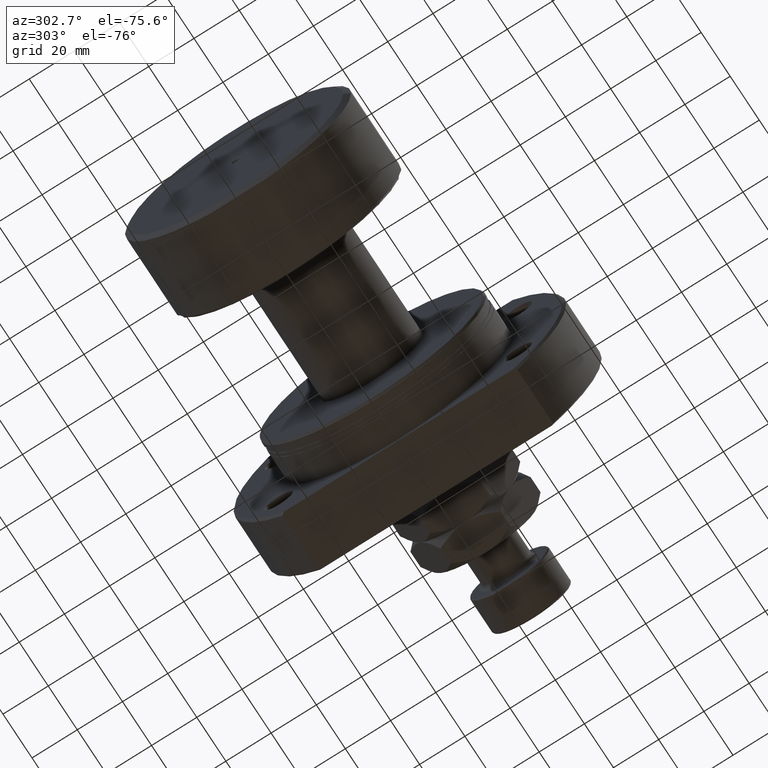
[diagram: clean part render]
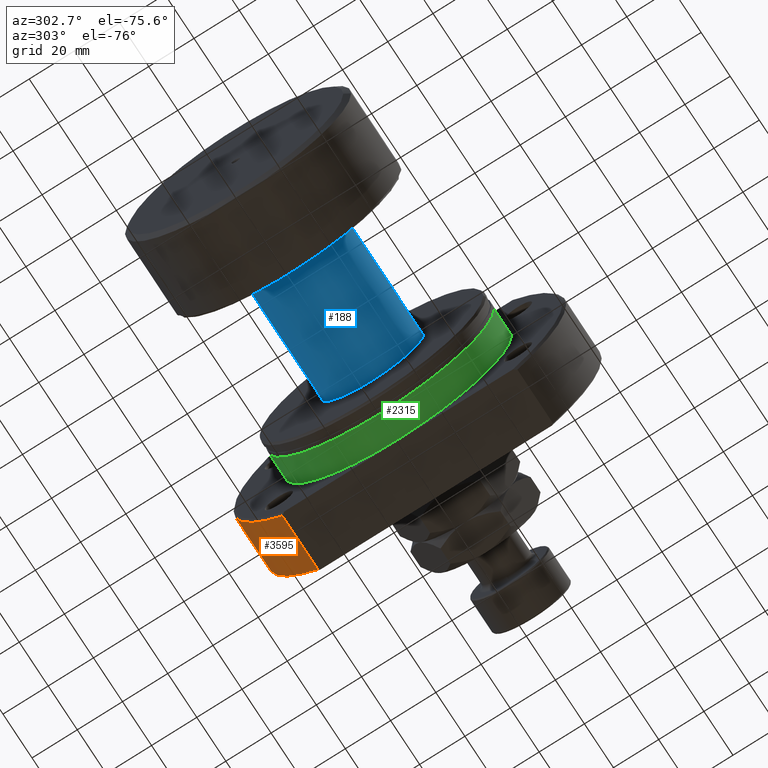
[diagram: same view with three faces highlighted in distinct colors, each labeled with its STEP entity id]
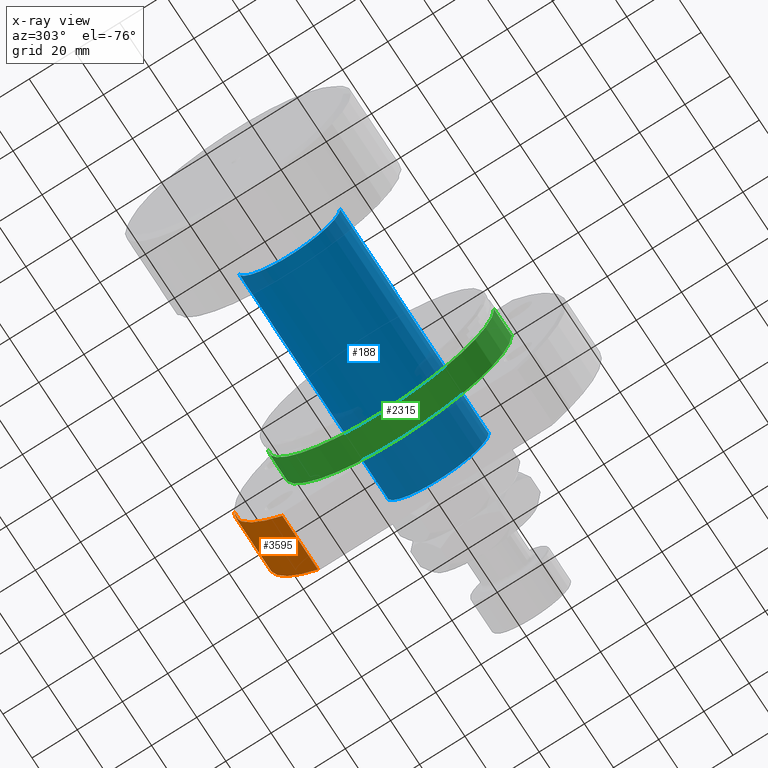
[diagram: x-ray of the same camera — body ghosted, the three highlighted faces saturated]
A machine part, auxiliary view with three faces highlighted in distinct colors.
The next image is the same camera in x-ray (body ghosted, the three faces saturated) — at least one of them is partly hidden behind the body in this view.
Their STEP definitions:

[orange] entity #3595 — the highlighted cylindrical surface (partial cylindrical patch) has radius 73.5 mm, axis along (1, 0, 0).
#21 = CARTESIAN_POINT ( 'NONE',  ( 19.49999999999999645, 1.073285958803297879E-15, 0.000000000000000000 ) ) ;
#180 = CARTESIAN_POINT ( 'NONE',  ( 44.49999999999999289, 73.49999999999991473, 0.000000000000000000 ) ) ;
#235 = CARTESIAN_POINT ( 'NONE',  ( -6.175615574477433256E-13, 51.94468211472779018, -52.00000000000000711 ) ) ;
#315 = DIRECTION ( 'NONE',  ( -9.440671978105083104E-17, 1.000000000000000000, 0.000000000000000000 ) ) ;
#360 = AXIS2_PLACEMENT_3D ( 'NONE', #2550, #1721, #2122 ) ;
#417 = CARTESIAN_POINT ( 'NONE',  ( 44.00000000000007816, 73.49999999999991473, 0.000000000000000000 ) ) ;
#503 = VERTEX_POINT ( 'NONE', #1491 ) ;
#528 = AXIS2_PLACEMENT_3D ( 'NONE', #21, #4663, #2021 ) ;
#600 = ORIENTED_EDGE ( 'NONE', *, *, #3935, .T. ) ;
#1108 = DIRECTION ( 'NONE',  ( 1.000000000000000000, 5.504030557965630938E-17, -0.000000000000000000 ) ) ;
#1203 = VERTEX_POINT ( 'NONE', #2960 ) ;
#1221 = EDGE_CURVE ( 'NONE', #4900, #503, #3413, .T. ) ;
#1310 = CARTESIAN_POINT ( 'NONE',  ( 19.49999999999999289, 51.94468211472722885, -52.00000000000000711 ) ) ;
#1491 = CARTESIAN_POINT ( 'NONE',  ( 44.00000000000007816, 51.94468211472651831, -52.00000000000000711 ) ) ;
#1497 = EDGE_CURVE ( 'NONE', #1203, #1760, #4741, .T. ) ;
#1721 = DIRECTION ( 'NONE',  ( 1.000000000000000000, 5.504030557965630938E-17, -0.000000000000000000 ) ) ;
#1760 = VERTEX_POINT ( 'NONE', #417 ) ;
#2021 = DIRECTION ( 'NONE',  ( -4.720335989052541552E-17, 1.000000000000000000, 0.000000000000000000 ) ) ;
#2122 = DIRECTION ( 'NONE',  ( -9.440671978105083104E-17, 1.000000000000000000, 0.000000000000000000 ) ) ;
#2305 = AXIS2_PLACEMENT_3D ( 'NONE', #3784, #1108, #315 ) ;
#2356 = ORIENTED_EDGE ( 'NONE', *, *, #1221, .F. ) ;
#2376 = EDGE_LOOP ( 'NONE', ( #600, #2679, #4401, #2356 ) ) ;
#2450 = CYLINDRICAL_SURFACE ( 'NONE', #360, 73.49999999999991473 ) ;
#2550 = CARTESIAN_POINT ( 'NONE',  ( 44.50000000000000000, 2.449293598294705724E-15, 0.000000000000000000 ) ) ;
#2679 = ORIENTED_EDGE ( 'NONE', *, *, #1497, .T. ) ;
#2708 = CIRCLE ( 'NONE', #528, 73.49999999999991473 ) ;
#2960 = CARTESIAN_POINT ( 'NONE',  ( 19.49999999999999289, 73.49999999999991473, 0.000000000000000000 ) ) ;
#2995 = EDGE_CURVE ( 'NONE', #503, #1760, #4481, .T. ) ;
#3287 = FACE_OUTER_BOUND ( 'NONE', #2376, .T. ) ;
#3413 = LINE ( 'NONE', #235, #4786 ) ;
#3595 = ADVANCED_FACE ( 'NONE', ( #3287 ), #2450, .T. ) ;
#3784 = CARTESIAN_POINT ( 'NONE',  ( 44.00000000000008527, 2.421773445504882888E-15, 0.000000000000000000 ) ) ;
#3935 = EDGE_CURVE ( 'NONE', #4900, #1203, #2708, .T. ) ;
#4233 = VECTOR ( 'NONE', #4785, 1000.000000000000000 ) ;
#4401 = ORIENTED_EDGE ( 'NONE', *, *, #2995, .F. ) ;
#4481 = CIRCLE ( 'NONE', #2305, 73.49999999999991473 ) ;
#4663 = DIRECTION ( 'NONE',  ( 1.000000000000000000, 5.504030557965630938E-17, -0.000000000000000000 ) ) ;
#4741 = LINE ( 'NONE', #180, #4233 ) ;
#4785 = DIRECTION ( 'NONE',  ( 1.000000000000000000, 5.504030557965630938E-17, -0.000000000000000000 ) ) ;
#4786 = VECTOR ( 'NONE', #4933, 1000.000000000000000 ) ;
#4900 = VERTEX_POINT ( 'NONE', #1310 ) ;
#4933 = DIRECTION ( 'NONE',  ( 1.000000000000000000, -2.886466111666351885E-14, -0.000000000000000000 ) ) ;

[blue] entity #188 — the highlighted cylindrical surface (partial cylindrical patch) has radius 22.5 mm, axis along (-1, -0, -0).
#22 = ORIENTED_EDGE ( 'NONE', *, *, #427, .T. ) ;
#27 = CARTESIAN_POINT ( 'NONE',  ( 139.0667575123237896, -22.50000000000019185, 0.000000000000000000 ) ) ;
#188 = ADVANCED_FACE ( 'NONE', ( #1277 ), #3591, .T. ) ;
#297 = CARTESIAN_POINT ( 'NONE',  ( -2.406470224655408490E-16, 22.50000000000009592, 2.755455298081556216E-15 ) ) ;
#376 = EDGE_CURVE ( 'NONE', #4976, #2086, #4065, .T. ) ;
#427 = EDGE_CURVE ( 'NONE', #4976, #3447, #3177, .T. ) ;
#747 = CARTESIAN_POINT ( 'NONE',  ( 139.0667575123237896, 22.50000000000018829, 2.755455298081568049E-15 ) ) ;
#773 = CIRCLE ( 'NONE', #935, 22.50000000000000000 ) ;
#930 = VECTOR ( 'NONE', #3863, 1000.000000000000000 ) ;
#935 = AXIS2_PLACEMENT_3D ( 'NONE', #1299, #1342, #4412 ) ;
#1131 = VERTEX_POINT ( 'NONE', #3980 ) ;
#1277 = FACE_OUTER_BOUND ( 'NONE', #2027, .T. ) ;
#1299 = CARTESIAN_POINT ( 'NONE',  ( 36.70000000000000284, 3.925220321993471577E-16, 0.000000000000000000 ) ) ;
#1342 = DIRECTION ( 'NONE',  ( -1.000000000000000000, -1.069542322069065801E-17, -0.000000000000000000 ) ) ;
#1775 = DIRECTION ( 'NONE',  ( 0.000000000000000000, -1.000000000000000000, 0.000000000000000000 ) ) ;
#2024 = CARTESIAN_POINT ( 'NONE',  ( 0.000000000000000000, 0.000000000000000000, 0.000000000000000000 ) ) ;
#2027 = EDGE_LOOP ( 'NONE', ( #3479, #22, #4947, #3551 ) ) ;
#2086 = VERTEX_POINT ( 'NONE', #3506 ) ;
#2100 = DIRECTION ( 'NONE',  ( 1.069542322069065955E-17, -1.000000000000000000, 0.000000000000000000 ) ) ;
#2137 = EDGE_CURVE ( 'NONE', #3447, #1131, #3399, .T. ) ;
#2748 = EDGE_CURVE ( 'NONE', #2086, #1131, #773, .T. ) ;
#2808 = DIRECTION ( 'NONE',  ( -1.000000000000000000, -1.069542322069065801E-17, -0.000000000000000000 ) ) ;
#3177 = CIRCLE ( 'NONE', #4387, 22.50000000000019185 ) ;
#3381 = DIRECTION ( 'NONE',  ( -1.000000000000000000, -1.069542322069065801E-17, -0.000000000000000000 ) ) ;
#3399 = LINE ( 'NONE', #4601, #930 ) ;
#3447 = VERTEX_POINT ( 'NONE', #27 ) ;
#3479 = ORIENTED_EDGE ( 'NONE', *, *, #376, .F. ) ;
#3506 = CARTESIAN_POINT ( 'NONE',  ( 36.70000000000000284, 22.50000000000000000, 2.755455298081550694E-15 ) ) ;
#3551 = ORIENTED_EDGE ( 'NONE', *, *, #2748, .F. ) ;
#3591 = CYLINDRICAL_SURFACE ( 'NONE', #3986, 22.50000000000009592 ) ;
#3663 = VECTOR ( 'NONE', #4906, 1000.000000000000000 ) ;
#3733 = CARTESIAN_POINT ( 'NONE',  ( 139.0667575123237896, 1.487377827523464785E-15, 0.000000000000000000 ) ) ;
#3863 = DIRECTION ( 'NONE',  ( -1.000000000000000000, -1.069542322069065801E-17, -0.000000000000000000 ) ) ;
#3980 = CARTESIAN_POINT ( 'NONE',  ( 36.70000000000000284, -22.50000000000000000, 0.000000000000000000 ) ) ;
#3986 = AXIS2_PLACEMENT_3D ( 'NONE', #2024, #2808, #2100 ) ;
#4065 = LINE ( 'NONE', #297, #3663 ) ;
#4387 = AXIS2_PLACEMENT_3D ( 'NONE', #3733, #3381, #1775 ) ;
#4412 = DIRECTION ( 'NONE',  ( 0.000000000000000000, -1.000000000000000000, 0.000000000000000000 ) ) ;
#4601 = CARTESIAN_POINT ( 'NONE',  ( 2.406470224655408490E-16, -22.50000000000009592, 0.000000000000000000 ) ) ;
#4906 = DIRECTION ( 'NONE',  ( -1.000000000000000000, -1.069542322069065801E-17, -0.000000000000000000 ) ) ;
#4947 = ORIENTED_EDGE ( 'NONE', *, *, #2137, .T. ) ;
#4976 = VERTEX_POINT ( 'NONE', #747 ) ;

[green] entity #2315 — the highlighted cylindrical surface (partial cylindrical patch) has radius 50 mm, axis along (1, 0, 0).
#131 = DIRECTION ( 'NONE',  ( 1.000000000000000000, 5.504030557965630938E-17, -0.000000000000000000 ) ) ;
#153 = CARTESIAN_POINT ( 'NONE',  ( 6.499999999999787725, 50.00000000000000000, 0.000000000000000000 ) ) ;
#226 = VERTEX_POINT ( 'NONE', #153 ) ;
#356 = DIRECTION ( 'NONE',  ( -6.938893903907228378E-17, 1.000000000000000000, 0.000000000000000000 ) ) ;
#537 = CARTESIAN_POINT ( 'NONE',  ( 18.50000000000000355, -50.00000000000000000, 6.123233995736766085E-15 ) ) ;
#1129 = DIRECTION ( 'NONE',  ( 1.000000000000000000, 5.504030557965630938E-17, -0.000000000000000000 ) ) ;
#1195 = DIRECTION ( 'NONE',  ( 1.000000000000000000, 5.504030557965630938E-17, -0.000000000000000000 ) ) ;
#1211 = DIRECTION ( 'NONE',  ( 0.000000000000000000, 1.000000000000000000, 0.000000000000000000 ) ) ;
#1290 = VERTEX_POINT ( 'NONE', #4963 ) ;
#1309 = CARTESIAN_POINT ( 'NONE',  ( 6.499999999999793054, -50.00000000000000000, 6.123233995736766085E-15 ) ) ;
#1351 = VECTOR ( 'NONE', #131, 1000.000000000000000 ) ;
#1443 = AXIS2_PLACEMENT_3D ( 'NONE', #4908, #3029, #4558 ) ;
#1710 = CARTESIAN_POINT ( 'NONE',  ( 44.50000000000000000, 2.449293598294705724E-15, 0.000000000000000000 ) ) ;
#1750 = CIRCLE ( 'NONE', #1443, 50.00000000000000000 ) ;
#1953 = LINE ( 'NONE', #3142, #1351 ) ;
#2098 = ORIENTED_EDGE ( 'NONE', *, *, #3798, .T. ) ;
#2216 = VERTEX_POINT ( 'NONE', #537 ) ;
#2221 = EDGE_LOOP ( 'NONE', ( #3997, #2098, #2299, #4126 ) ) ;
#2299 = ORIENTED_EDGE ( 'NONE', *, *, #3562, .T. ) ;
#2315 = ADVANCED_FACE ( 'NONE', ( #3630 ), #3938, .T. ) ;
#2484 = AXIS2_PLACEMENT_3D ( 'NONE', #4573, #1129, #356 ) ;
#2728 = LINE ( 'NONE', #3105, #4328 ) ;
#2796 = AXIS2_PLACEMENT_3D ( 'NONE', #1710, #3245, #1211 ) ;
#3029 = DIRECTION ( 'NONE',  ( 1.000000000000000000, 5.504030557965630938E-17, -0.000000000000000000 ) ) ;
#3067 = VERTEX_POINT ( 'NONE', #1309 ) ;
#3105 = CARTESIAN_POINT ( 'NONE',  ( 44.50000000000000000, -50.00000000000000000, 6.123233995736766085E-15 ) ) ;
#3142 = CARTESIAN_POINT ( 'NONE',  ( 44.50000000000000000, 50.00000000000000000, 0.000000000000000000 ) ) ;
#3245 = DIRECTION ( 'NONE',  ( 1.000000000000000000, 5.504030557965630938E-17, -0.000000000000000000 ) ) ;
#3562 = EDGE_CURVE ( 'NONE', #226, #1290, #1953, .T. ) ;
#3613 = CIRCLE ( 'NONE', #2484, 50.00000000000000000 ) ;
#3630 = FACE_OUTER_BOUND ( 'NONE', #2221, .T. ) ;
#3798 = EDGE_CURVE ( 'NONE', #3067, #226, #1750, .T. ) ;
#3898 = EDGE_CURVE ( 'NONE', #3067, #2216, #2728, .T. ) ;
#3938 = CYLINDRICAL_SURFACE ( 'NONE', #2796, 50.00000000000000000 ) ;
#3997 = ORIENTED_EDGE ( 'NONE', *, *, #3898, .F. ) ;
#4126 = ORIENTED_EDGE ( 'NONE', *, *, #4834, .F. ) ;
#4328 = VECTOR ( 'NONE', #1195, 1000.000000000000000 ) ;
#4558 = DIRECTION ( 'NONE',  ( -5.204170427930421283E-17, 1.000000000000000000, 0.000000000000000000 ) ) ;
#4573 = CARTESIAN_POINT ( 'NONE',  ( 18.50000000000000000, 1.018245653223641557E-15, 0.000000000000000000 ) ) ;
#4834 = EDGE_CURVE ( 'NONE', #2216, #1290, #3613, .T. ) ;
#4908 = CARTESIAN_POINT ( 'NONE',  ( 6.499999999999790390, 3.577619862677545540E-16, 0.000000000000000000 ) ) ;
#4963 = CARTESIAN_POINT ( 'NONE',  ( 18.49999999999999645, 50.00000000000000000, 0.000000000000000000 ) ) ;